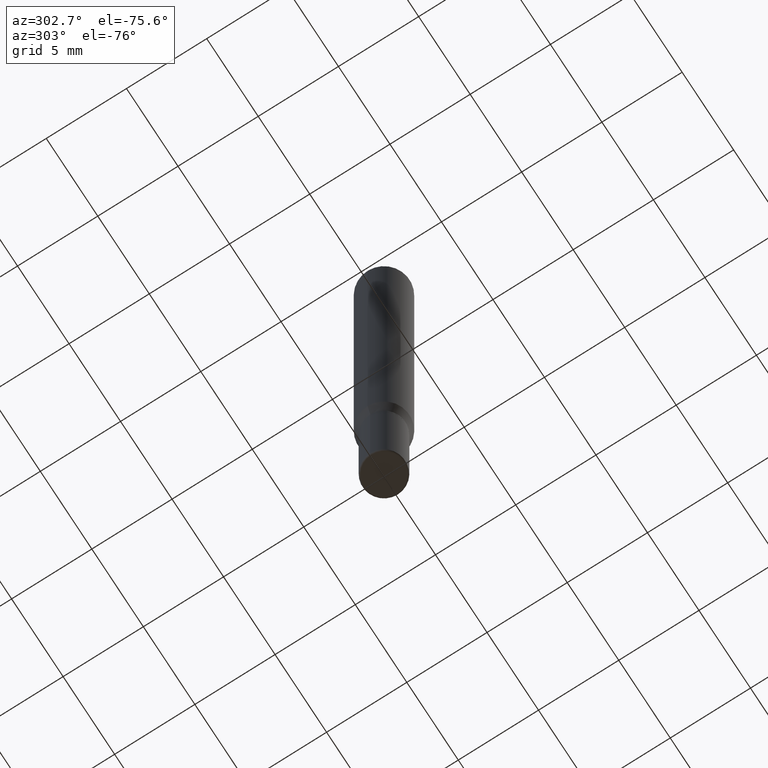
[diagram: clean part render]
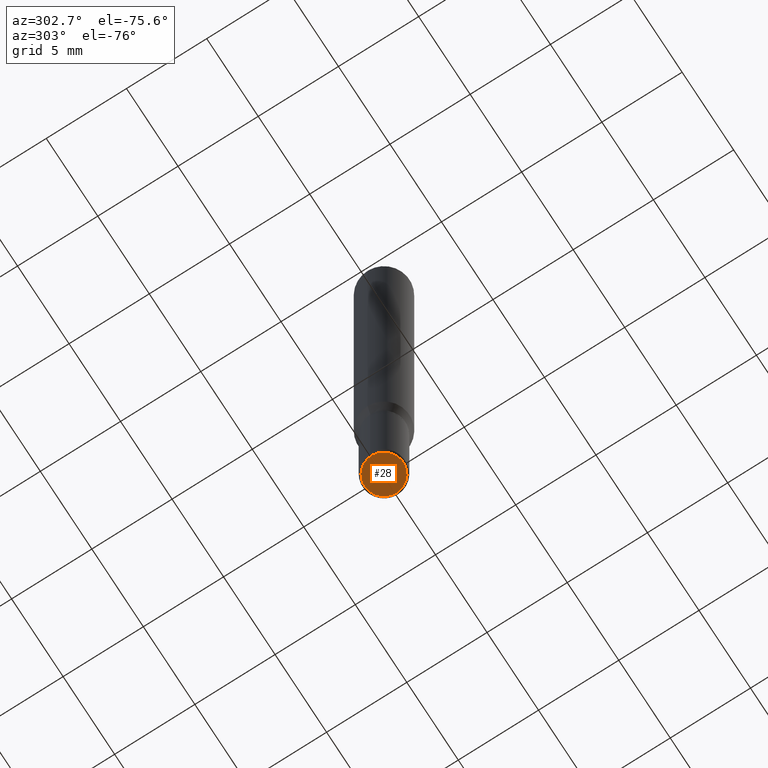
[diagram: same view with one face highlighted and labeled with its STEP entity id]
A machine part, auxiliary view. The second image highlights one B-rep face of the part: STEP entity #28.
In plain terms, the highlighted planar face has unit normal (-0, 0, 1).
Its self-contained STEP definition (entity closure, byte-faithful):
#18 = CARTESIAN_POINT ( 'NONE',  ( 3.582686580359767159E-29, -5.359686688179454114E-15, -1.500000000000000444 ) ) ;
#28 = ADVANCED_FACE ( 'NONE', ( #128 ), #213, .F. ) ;
#52 = CARTESIAN_POINT ( 'NONE',  ( -0.04749999999999998668, -4.873221937037561039E-15, -1.500000000000000444 ) ) ;
#71 = AXIS2_PLACEMENT_3D ( 'NONE', #84, #211, #453 ) ;
#75 = ORIENTED_EDGE ( 'NONE', *, *, #190, .F. ) ;
#84 = CARTESIAN_POINT ( 'NONE',  ( 3.668203209277706016E-29, -5.237222008264719754E-15, -1.500000000000000444 ) ) ;
#114 = DIRECTION ( 'NONE',  ( 1.000000000000000000, -6.982962677686263555E-15, 0.000000000000000000 ) ) ;
#128 = FACE_OUTER_BOUND ( 'NONE', #233, .T. ) ;
#130 = DIRECTION ( 'NONE',  ( -2.438088387897960049E-29, 3.491481338843145188E-15, 1.000000000000000000 ) ) ;
#131 = VERTEX_POINT ( 'NONE', #416 ) ;
#141 = DIRECTION ( 'NONE',  ( 1.000000000000000000, -6.982962677686265922E-15, 4.876176775795935793E-29 ) ) ;
#142 = VERTEX_POINT ( 'NONE', #52 ) ;
#146 = AXIS2_PLACEMENT_3D ( 'NONE', #18, #130, #141 ) ;
#167 = ORIENTED_EDGE ( 'NONE', *, *, #377, .F. ) ;
#190 = EDGE_CURVE ( 'NONE', #142, #131, #309, .T. ) ;
#193 = CARTESIAN_POINT ( 'NONE',  ( 3.668203209277706016E-29, -5.237222008264719754E-15, -1.500000000000000444 ) ) ;
#211 = DIRECTION ( 'NONE',  ( -2.445468806185136597E-29, 3.491481338843145583E-15, 1.000000000000000000 ) ) ;
#213 = PLANE ( 'NONE',  #146 ) ;
#233 = EDGE_LOOP ( 'NONE', ( #167, #75 ) ) ;
#309 = CIRCLE ( 'NONE', #323, 0.04749999999999998668 ) ;
#323 = AXIS2_PLACEMENT_3D ( 'NONE', #193, #357, #114 ) ;
#357 = DIRECTION ( 'NONE',  ( -2.445468806185136597E-29, 3.491481338843145583E-15, 1.000000000000000000 ) ) ;
#377 = EDGE_CURVE ( 'NONE', #131, #142, #489, .T. ) ;
#416 = CARTESIAN_POINT ( 'NONE',  ( 0.04749999999999998668, -5.568912735454817265E-15, -1.500000000000000444 ) ) ;
#453 = DIRECTION ( 'NONE',  ( 1.000000000000000000, -6.982962677686263555E-15, 0.000000000000000000 ) ) ;
#489 = CIRCLE ( 'NONE', #71, 0.04749999999999998668 ) ;